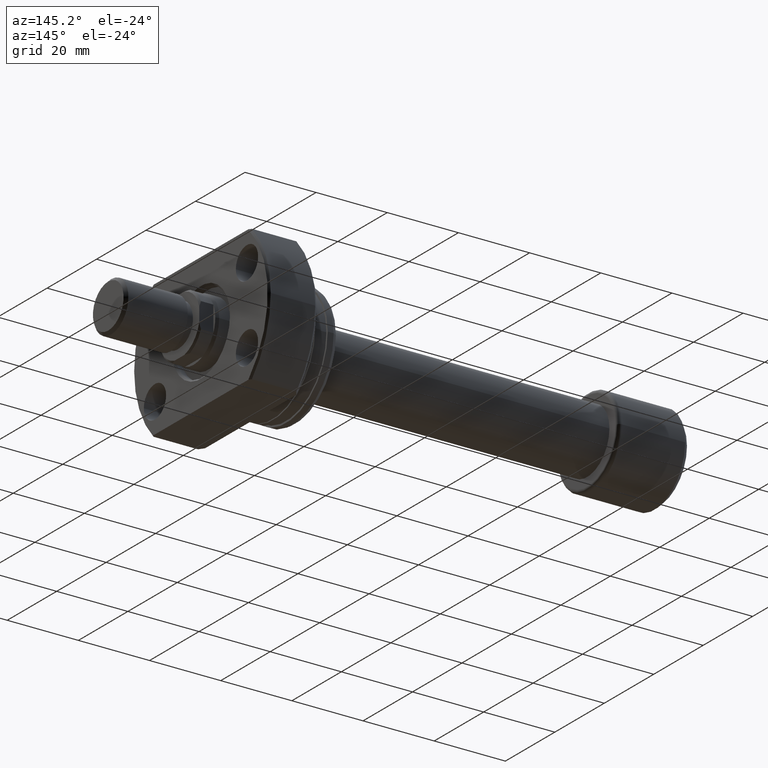
[diagram: clean part render]
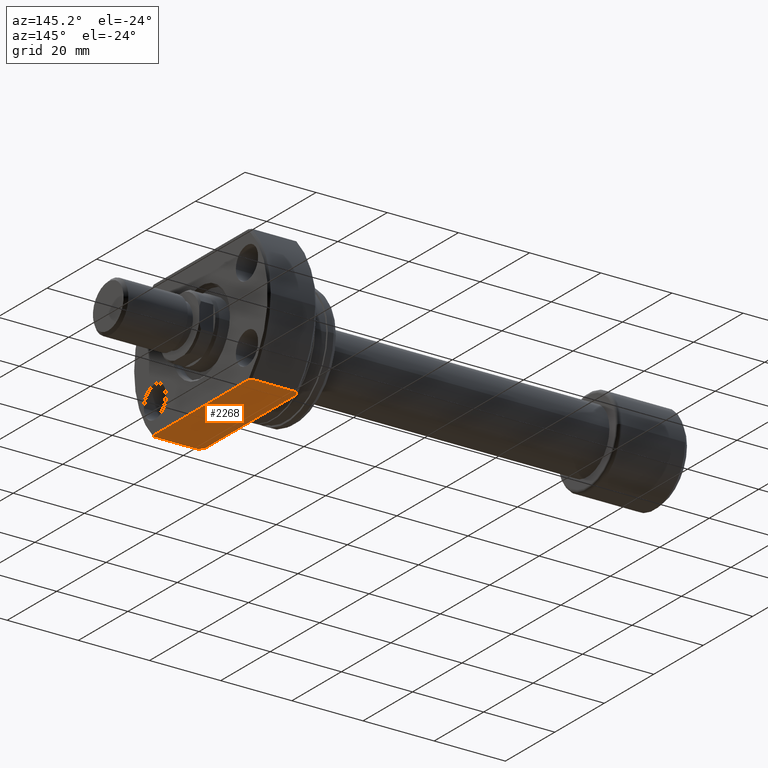
[diagram: same view with one face highlighted and labeled with its STEP entity id]
A machine part, auxiliary view. The second image highlights one B-rep face of the part: STEP entity #2268.
In plain terms, the highlighted planar face has unit normal (0, 0, 1).
Its self-contained STEP definition (entity closure, byte-faithful):
#72 = VERTEX_POINT ( 'NONE', #1980 ) ;
#85 = EDGE_CURVE ( 'NONE', #2444, #2168, #2128, .T. ) ;
#92 = CARTESIAN_POINT ( 'NONE',  ( 26.50000000000000355, 19.18332609325086580, -19.00000000000001066 ) ) ;
#164 = VECTOR ( 'NONE', #2263, 1000.000000000000000 ) ;
#258 = VERTEX_POINT ( 'NONE', #2316 ) ;
#374 = ORIENTED_EDGE ( 'NONE', *, *, #1317, .F. ) ;
#416 = VECTOR ( 'NONE', #1744, 1000.000000000000000 ) ;
#462 = CARTESIAN_POINT ( 'NONE',  ( 26.50000000000000355, -19.18332609325086580, -19.00000000000001066 ) ) ;
#483 = CARTESIAN_POINT ( 'NONE',  ( 13.49999999999998757, 19.88089535207129543, -18.99999999999999645 ) ) ;
#651 = DIRECTION ( 'NONE',  ( 1.000000000000000000, -2.886466111666351885E-14, -0.000000000000000000 ) ) ;
#702 = CARTESIAN_POINT ( 'NONE',  ( 12.50000000000000355, -18.47295320191106072, -19.00000000000001066 ) ) ;
#773 = ORIENTED_EDGE ( 'NONE', *, *, #1113, .F. ) ;
#807 = CARTESIAN_POINT ( 'NONE',  ( 26.50000000000000355, -19.18332609325086580, -19.00000000000001066 ) ) ;
#924 = AXIS2_PLACEMENT_3D ( 'NONE', #968, #2712, #1591 ) ;
#968 = CARTESIAN_POINT ( 'NONE',  ( -2.151057110211240797E-13, 19.88089535207168623, -19.00000000000001066 ) ) ;
#1018 = LINE ( 'NONE', #1662, #2896 ) ;
#1026 = CARTESIAN_POINT ( 'NONE',  ( 26.33429591812844350, -19.41654999763448330, -19.00000000000001066 ) ) ;
#1113 = EDGE_CURVE ( 'NONE', #1982, #2444, #3688, .T. ) ;
#1126 = CARTESIAN_POINT ( 'NONE',  ( 26.50000000000000355, -27.00000000000000000, -19.00000000000001066 ) ) ;
#1181 = EDGE_CURVE ( 'NONE', #258, #3541, #1504, .T. ) ;
#1200 = ORIENTED_EDGE ( 'NONE', *, *, #1249, .T. ) ;
#1226 = ORIENTED_EDGE ( 'NONE', *, *, #3648, .F. ) ;
#1239 = CARTESIAN_POINT ( 'NONE',  ( 26.16760613831981530, -19.64905625618671081, -19.00000000000001066 ) ) ;
#1249 = EDGE_CURVE ( 'NONE', #2549, #2168, #3168, .T. ) ;
#1317 = EDGE_CURVE ( 'NONE', #1883, #258, #1574, .T. ) ;
#1329 = CARTESIAN_POINT ( 'NONE',  ( 12.50000000000000355, 18.47295320191106072, -19.00000000000001066 ) ) ;
#1331 = EDGE_CURVE ( 'NONE', #2549, #72, #1666, .T. ) ;
#1394 = B_SPLINE_CURVE_WITH_KNOTS ( 'NONE', 3,
 ( #1598, #1239, #1026, #462 ),
 .UNSPECIFIED., .F., .F.,
 ( 4, 4 ),
 ( 0.03127512062948594601, 0.03213456893170306417 ),
 .UNSPECIFIED. ) ;
#1504 = LINE ( 'NONE', #2097, #3027 ) ;
#1559 = CARTESIAN_POINT ( 'NONE',  ( 12.50000000000000355, -18.47295320191106072, -19.00000000000001066 ) ) ;
#1574 = B_SPLINE_CURVE_WITH_KNOTS ( 'NONE', 3,
 ( #1559, #2705, #3597, #3617 ),
 .UNSPECIFIED., .F., .F.,
 ( 4, 4 ),
 ( 0.07360185391654981701, 0.07534192973589430575 ),
 .UNSPECIFIED. ) ;
#1591 = DIRECTION ( 'NONE',  ( 1.000000000000000000, 0.000000000000000000, -0.000000000000000000 ) ) ;
#1598 = CARTESIAN_POINT ( 'NONE',  ( 26.00000000000007461, -19.88089535207092240, -19.00000000000001066 ) ) ;
#1662 = CARTESIAN_POINT ( 'NONE',  ( 12.50000000000000355, -16.99999999999999645, -19.00000000000001066 ) ) ;
#1666 = B_SPLINE_CURVE_WITH_KNOTS ( 'NONE', 3,
 ( #483, #2121, #2987, #1329 ),
 .UNSPECIFIED., .F., .F.,
 ( 4, 4 ),
 ( 0.03128279945209441748, 0.03301205973984314840 ),
 .UNSPECIFIED. ) ;
#1674 = CARTESIAN_POINT ( 'NONE',  ( 26.00000000000007461, 19.88089535207093306, -18.99999999999999645 ) ) ;
#1744 = DIRECTION ( 'NONE',  ( 1.000000000000000000, -2.886466111666351885E-14, -0.000000000000000000 ) ) ;
#1788 = ORIENTED_EDGE ( 'NONE', *, *, #1331, .F. ) ;
#1883 = VERTEX_POINT ( 'NONE', #702 ) ;
#1913 = CARTESIAN_POINT ( 'NONE',  ( 26.33435831467464183, 19.41646217622441384, -19.00000000000001066 ) ) ;
#1980 = CARTESIAN_POINT ( 'NONE',  ( 12.50000000000000355, 18.47295320191106072, -19.00000000000001066 ) ) ;
#1982 = VERTEX_POINT ( 'NONE', #807 ) ;
#2097 = CARTESIAN_POINT ( 'NONE',  ( -1.360023205165816762E-12, -19.88089535207017278, -19.00000000000001066 ) ) ;
#2121 = CARTESIAN_POINT ( 'NONE',  ( 13.16276636410033696, 19.41442114037127098, -19.00000000000001066 ) ) ;
#2128 = B_SPLINE_CURVE_WITH_KNOTS ( 'NONE', 3,
 ( #3111, #1913, #2852, #1674 ),
 .UNSPECIFIED., .F., .F.,
 ( 4, 4 ),
 ( 0.07446973138748344545, 0.07533421896860405254 ),
 .UNSPECIFIED. ) ;
#2168 = VERTEX_POINT ( 'NONE', #3141 ) ;
#2263 = DIRECTION ( 'NONE',  ( -9.242617352055502386E-18, 1.000000000000000000, -0.000000000000000000 ) ) ;
#2268 = ADVANCED_FACE ( 'NONE', ( #3008 ), #3534, .F. ) ;
#2316 = CARTESIAN_POINT ( 'NONE',  ( 13.49999999999998757, -19.88089535207056358, -19.00000000000001066 ) ) ;
#2444 = VERTEX_POINT ( 'NONE', #92 ) ;
#2493 = ORIENTED_EDGE ( 'NONE', *, *, #1181, .F. ) ;
#2549 = VERTEX_POINT ( 'NONE', #2878 ) ;
#2705 = CARTESIAN_POINT ( 'NONE',  ( 12.82897297353833288, -18.94487470268462559, -19.00000000000001066 ) ) ;
#2712 = DIRECTION ( 'NONE',  ( 0.000000000000000000, 0.000000000000000000, 1.000000000000000000 ) ) ;
#2805 = DIRECTION ( 'NONE',  ( 9.242617352055502386E-18, -1.000000000000000000, 0.000000000000000000 ) ) ;
#2852 = CARTESIAN_POINT ( 'NONE',  ( 26.16766778152495476, 19.64897098899369610, -19.00000000000001066 ) ) ;
#2878 = CARTESIAN_POINT ( 'NONE',  ( 13.49999999999998757, 19.88089535207129543, -18.99999999999999645 ) ) ;
#2896 = VECTOR ( 'NONE', #2805, 1000.000000000000000 ) ;
#2930 = ORIENTED_EDGE ( 'NONE', *, *, #3375, .F. ) ;
#2987 = CARTESIAN_POINT ( 'NONE',  ( 12.82923531929442440, 18.94525104546319128, -19.00000000000001066 ) ) ;
#3008 = FACE_OUTER_BOUND ( 'NONE', #3242, .T. ) ;
#3027 = VECTOR ( 'NONE', #651, 1000.000000000000000 ) ;
#3111 = CARTESIAN_POINT ( 'NONE',  ( 26.50000000000000355, 19.18332609325086580, -19.00000000000001066 ) ) ;
#3141 = CARTESIAN_POINT ( 'NONE',  ( 26.00000000000007461, 19.88089535207093306, -18.99999999999999645 ) ) ;
#3168 = LINE ( 'NONE', #3228, #416 ) ;
#3206 = CARTESIAN_POINT ( 'NONE',  ( 26.00000000000007461, -19.88089535207092240, -19.00000000000001066 ) ) ;
#3228 = CARTESIAN_POINT ( 'NONE',  ( -2.151057110211240797E-13, 19.88089535207168268, -18.99999999999999645 ) ) ;
#3242 = EDGE_LOOP ( 'NONE', ( #1200, #3540, #773, #1226, #2493, #374, #2930, #1788 ) ) ;
#3375 = EDGE_CURVE ( 'NONE', #72, #1883, #1018, .T. ) ;
#3534 = PLANE ( 'NONE',  #924 ) ;
#3540 = ORIENTED_EDGE ( 'NONE', *, *, #85, .F. ) ;
#3541 = VERTEX_POINT ( 'NONE', #3206 ) ;
#3597 = CARTESIAN_POINT ( 'NONE',  ( 13.16251021117672160, -19.41406682004138418, -19.00000000000001066 ) ) ;
#3617 = CARTESIAN_POINT ( 'NONE',  ( 13.49999999999998757, -19.88089535207056358, -19.00000000000001066 ) ) ;
#3648 = EDGE_CURVE ( 'NONE', #3541, #1982, #1394, .T. ) ;
#3688 = LINE ( 'NONE', #1126, #164 ) ;